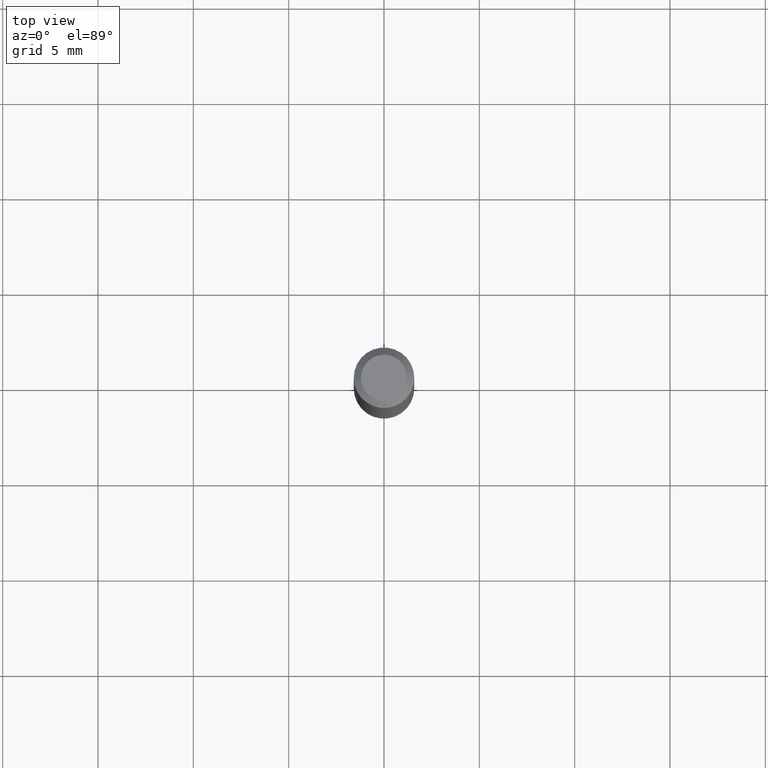
[diagram: clean part render]
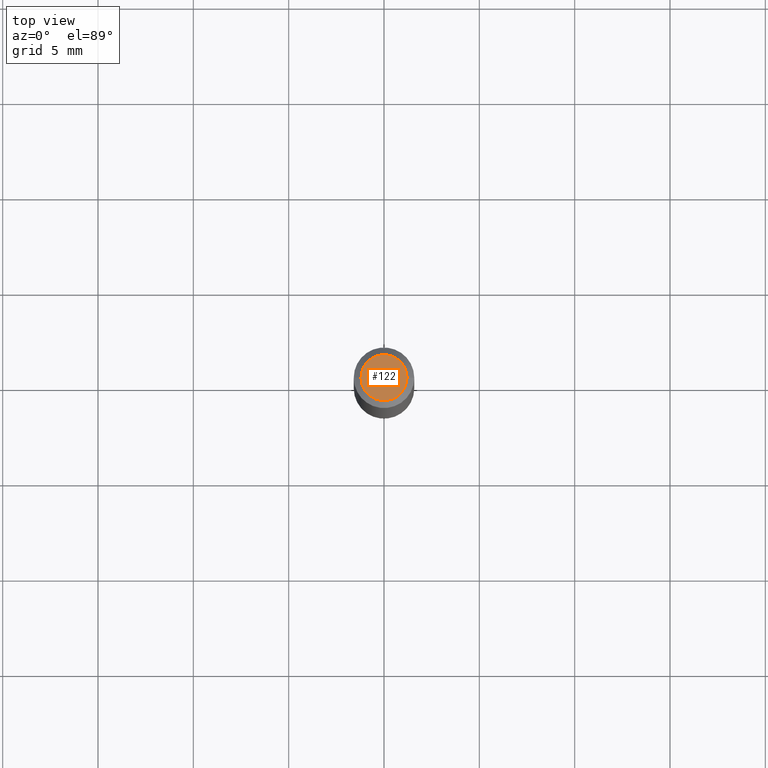
[diagram: same view with one face highlighted and labeled with its STEP entity id]
A machine part, top view. The second image highlights one B-rep face of the part: STEP entity #122.
In plain terms, the highlighted planar face has unit normal (0, -0, -1).
Its self-contained STEP definition (entity closure, byte-faithful):
#13 = CARTESIAN_POINT ( 'NONE',  ( -1.212688977629174450E-44, 1.731398464173454166E-30, 4.958922291554132214E-16 ) ) ;
#26 = DIRECTION ( 'NONE',  ( -2.445468806185136597E-29, 3.491481338843145583E-15, 1.000000000000000000 ) ) ;
#29 = FACE_OUTER_BOUND ( 'NONE', #360, .T. ) ;
#31 = VERTEX_POINT ( 'NONE', #98 ) ;
#67 = AXIS2_PLACEMENT_3D ( 'NONE', #13, #26, #429 ) ;
#87 = DIRECTION ( 'NONE',  ( -2.445468806185136597E-29, 3.491481338843145583E-15, 1.000000000000000000 ) ) ;
#98 = CARTESIAN_POINT ( 'NONE',  ( 0.04749999999999999362, -4.035134999187569255E-16, 4.958922291554157852E-16 ) ) ;
#122 = ADVANCED_FACE ( 'NONE', ( #29 ), #192, .F. ) ;
#180 = AXIS2_PLACEMENT_3D ( 'NONE', #233, #87, #222 ) ;
#184 = CARTESIAN_POINT ( 'NONE',  ( -0.04749999999999999362, 3.578768372314218888E-16, 4.958922291554107562E-16 ) ) ;
#185 = CIRCLE ( 'NONE', #180, 0.04749999999999999362 ) ;
#189 = EDGE_CURVE ( 'NONE', #31, #322, #185, .T. ) ;
#192 = PLANE ( 'NONE',  #319 ) ;
#222 = DIRECTION ( 'NONE',  ( 1.000000000000000000, -6.982962677686267499E-15, 4.852736867747366768E-29 ) ) ;
#233 = CARTESIAN_POINT ( 'NONE',  ( -1.212688977629174450E-44, 1.731398464173454166E-30, 4.958922291554132214E-16 ) ) ;
#254 = ORIENTED_EDGE ( 'NONE', *, *, #189, .T. ) ;
#268 = DIRECTION ( 'NONE',  ( -1.000000000000000000, 6.982962677686265922E-15, -4.876176775795935793E-29 ) ) ;
#292 = ORIENTED_EDGE ( 'NONE', *, *, #328, .T. ) ;
#303 = DIRECTION ( 'NONE',  ( 2.438088387897960049E-29, -3.491481338843145188E-15, -1.000000000000000000 ) ) ;
#319 = AXIS2_PLACEMENT_3D ( 'NONE', #455, #303, #268 ) ;
#322 = VERTEX_POINT ( 'NONE', #184 ) ;
#328 = EDGE_CURVE ( 'NONE', #322, #31, #354, .T. ) ;
#354 = CIRCLE ( 'NONE', #67, 0.04749999999999999362 ) ;
#360 = EDGE_LOOP ( 'NONE', ( #292, #254 ) ) ;
#429 = DIRECTION ( 'NONE',  ( 1.000000000000000000, -6.982962677686267499E-15, 4.852736867747366768E-29 ) ) ;
#455 = CARTESIAN_POINT ( 'NONE',  ( 3.316907271900976096E-16, 0.04749999999999999362, 8.210075098265718960E-17 ) ) ;